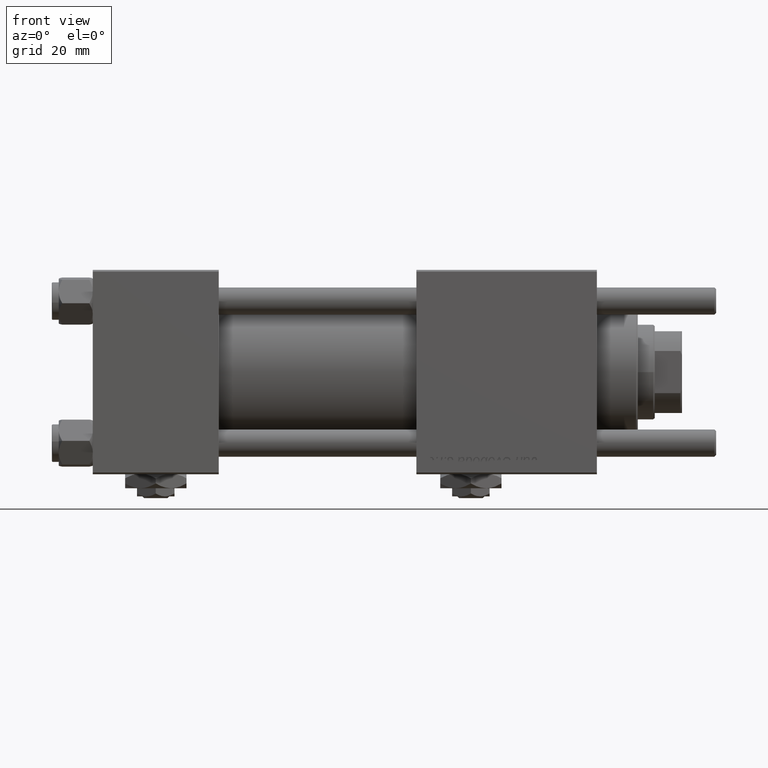
[diagram: clean part render]
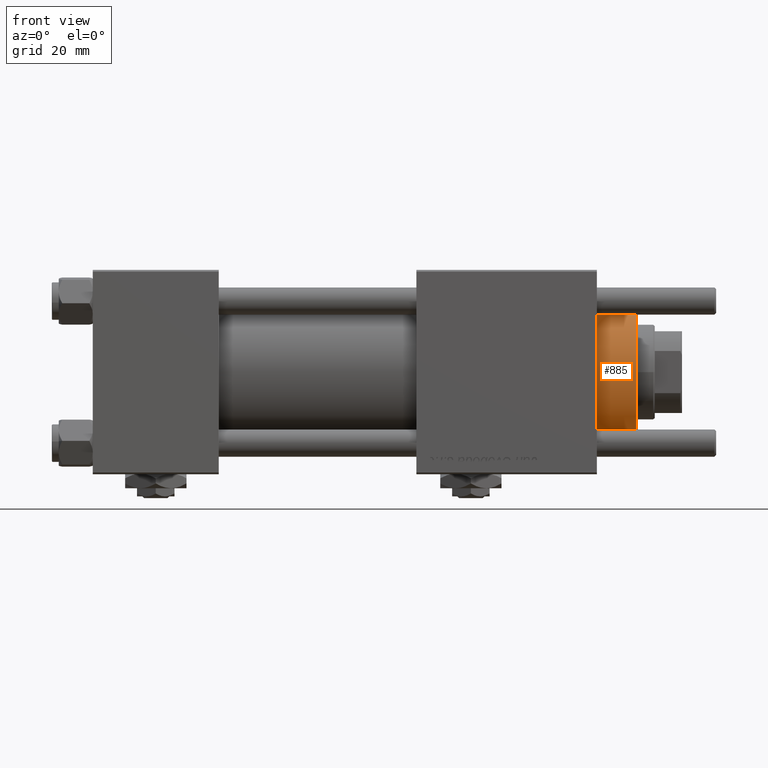
[diagram: same view with one face highlighted and labeled with its STEP entity id]
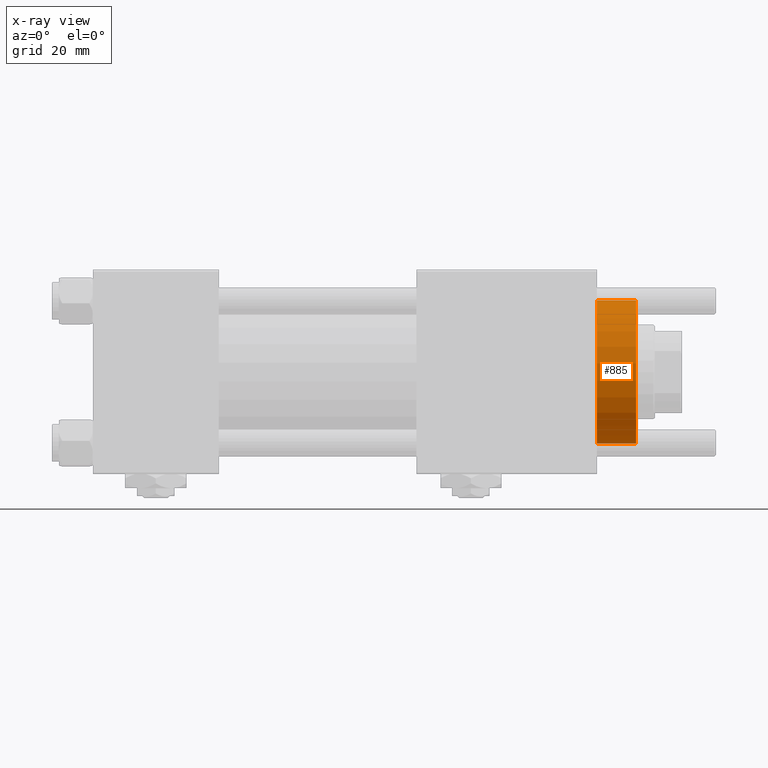
[diagram: x-ray of the same camera — body ghosted, the highlighted face saturated]
A machine part, front view. The second image highlights one B-rep face of the part: STEP entity #885.
The next image is the same camera in x-ray: the body ghosted, the highlighted face saturated — about 1% of this face is hidden behind the body in this view.
In plain terms, the highlighted cylindrical surface (partial cylindrical patch) has radius 21 mm, axis along (-1, -0, 0).
Its self-contained STEP definition (entity closure, byte-faithful):
#664 = EDGE_CURVE ( 'NONE', #54670, #2830, #38560, .T. ) ;
#885 = ADVANCED_FACE ( 'NONE', ( #2825 ), #26011, .T. ) ;
#1507 = DIRECTION ( 'NONE',  ( -0.000000000000000000, -0.000000000000000000, -1.000000000000000000 ) ) ;
#1657 = ORIENTED_EDGE ( 'NONE', *, *, #45710, .T. ) ;
#1709 = EDGE_CURVE ( 'NONE', #2830, #44945, #15700, .T. ) ;
#2825 = FACE_OUTER_BOUND ( 'NONE', #50644, .T. ) ;
#2830 = VERTEX_POINT ( 'NONE', #52370 ) ;
#2952 = VECTOR ( 'NONE', #1507, 1000.000000000000000 ) ;
#4192 = VERTEX_POINT ( 'NONE', #38516 ) ;
#6153 = VECTOR ( 'NONE', #37980, 1000.000000000000000 ) ;
#9026 = AXIS2_PLACEMENT_3D ( 'NONE', #27217, #22432, #41818 ) ;
#15700 = CIRCLE ( 'NONE', #9026, 21.00000000000000000 ) ;
#17656 = ORIENTED_EDGE ( 'NONE', *, *, #1709, .T. ) ;
#18161 = CARTESIAN_POINT ( 'NONE',  ( 21.00000000000000000, 2.571758278209441661E-15, 28.69999999999999929 ) ) ;
#18543 = DIRECTION ( 'NONE',  ( 1.000000000000000000, 0.000000000000000000, 0.000000000000000000 ) ) ;
#19355 = CIRCLE ( 'NONE', #30721, 21.00000000000000000 ) ;
#19522 = CARTESIAN_POINT ( 'NONE',  ( -21.00000000000000000, 0.000000000000000000, 40.70000000000000284 ) ) ;
#21254 = DIRECTION ( 'NONE',  ( -1.000000000000000000, 0.000000000000000000, 0.000000000000000000 ) ) ;
#22123 = DIRECTION ( 'NONE',  ( -0.000000000000000000, -0.000000000000000000, -1.000000000000000000 ) ) ;
#22432 = DIRECTION ( 'NONE',  ( 0.000000000000000000, 0.000000000000000000, 1.000000000000000000 ) ) ;
#23009 = DIRECTION ( 'NONE',  ( 0.000000000000000000, 0.000000000000000000, -1.000000000000000000 ) ) ;
#24036 = ORIENTED_EDGE ( 'NONE', *, *, #664, .T. ) ;
#24247 = AXIS2_PLACEMENT_3D ( 'NONE', #35540, #22123, #21254 ) ;
#26011 = CYLINDRICAL_SURFACE ( 'NONE', #24247, 21.00000000000000000 ) ;
#27217 = CARTESIAN_POINT ( 'NONE',  ( 0.000000000000000000, 0.000000000000000000, 28.69999999999999929 ) ) ;
#30721 = AXIS2_PLACEMENT_3D ( 'NONE', #50136, #23009, #18543 ) ;
#32747 = LINE ( 'NONE', #55995, #2952 ) ;
#35540 = CARTESIAN_POINT ( 'NONE',  ( 0.000000000000000000, 0.000000000000000000, 40.70000000000000284 ) ) ;
#36646 = ORIENTED_EDGE ( 'NONE', *, *, #38260, .F. ) ;
#37980 = DIRECTION ( 'NONE',  ( -0.000000000000000000, -0.000000000000000000, -1.000000000000000000 ) ) ;
#38260 = EDGE_CURVE ( 'NONE', #4192, #44945, #32747, .T. ) ;
#38516 = CARTESIAN_POINT ( 'NONE',  ( 21.00000000000000000, 2.571758278209441661E-15, 40.19999999999998863 ) ) ;
#38560 = LINE ( 'NONE', #19522, #6153 ) ;
#41818 = DIRECTION ( 'NONE',  ( 1.000000000000000000, 0.000000000000000000, 0.000000000000000000 ) ) ;
#44030 = CARTESIAN_POINT ( 'NONE',  ( -21.00000000000000000, 0.000000000000000000, 40.19999999999998863 ) ) ;
#44945 = VERTEX_POINT ( 'NONE', #18161 ) ;
#45710 = EDGE_CURVE ( 'NONE', #4192, #54670, #19355, .T. ) ;
#50136 = CARTESIAN_POINT ( 'NONE',  ( 0.000000000000000000, 0.000000000000000000, 40.19999999999998863 ) ) ;
#50644 = EDGE_LOOP ( 'NONE', ( #36646, #1657, #24036, #17656 ) ) ;
#52370 = CARTESIAN_POINT ( 'NONE',  ( -21.00000000000000000, 0.000000000000000000, 28.69999999999999929 ) ) ;
#54670 = VERTEX_POINT ( 'NONE', #44030 ) ;
#55995 = CARTESIAN_POINT ( 'NONE',  ( 21.00000000000000000, 2.571758278209441661E-15, 40.70000000000000284 ) ) ;